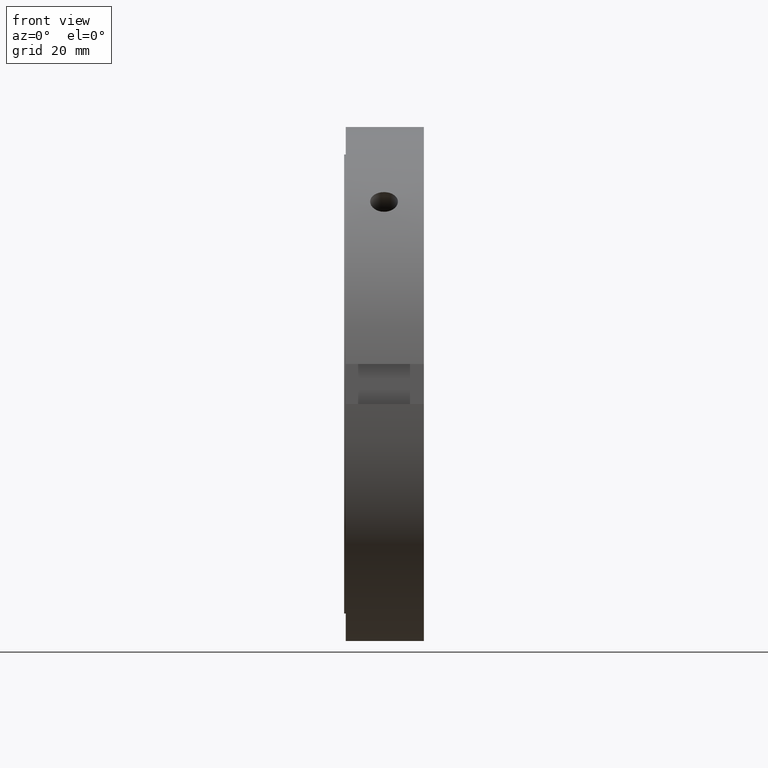
[diagram: clean part render]
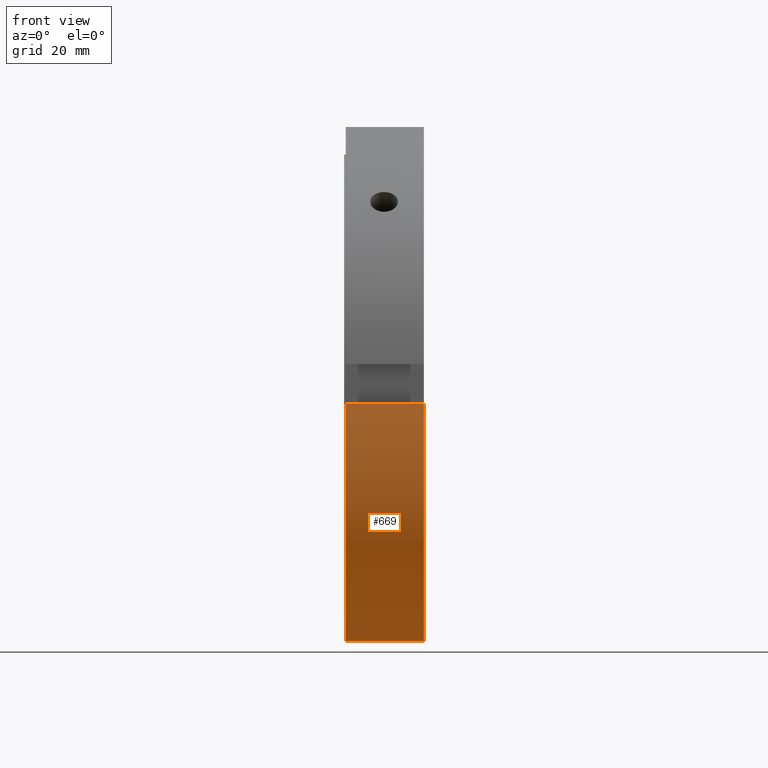
[diagram: same view with one face highlighted and labeled with its STEP entity id]
A machine part, front view. The second image highlights one B-rep face of the part: STEP entity #669.
In plain terms, the highlighted cylindrical surface (partial cylindrical patch) has radius 77.5 mm, axis along (1, 0, 0).
Its self-contained STEP definition (entity closure, byte-faithful):
#251=CARTESIAN_POINT('',(0.499999999999980,-6.000000000000011,-77.267392864001820));
#252=VERTEX_POINT('',#251);
#267=CARTESIAN_POINT('',(23.999999999999986,-6.000000000000011,-77.267392864001820));
#268=VERTEX_POINT('',#267);
#275=CARTESIAN_POINT('',(0.499999999999979,-6.000000000000011,-77.267392864001820));
#276=DIRECTION('',(1.0,0.0,0.0));
#277=VECTOR('',#276,23.500000000000007);
#278=LINE('',#275,#277);
#279=EDGE_CURVE('',#252,#268,#278,.T.);
#391=CARTESIAN_POINT('',(0.499999999999980,-77.267392864001820,-5.999999999999988));
#392=VERTEX_POINT('',#391);
#401=CARTESIAN_POINT('',(23.999999999999986,-77.267392864001820,-5.999999999999988));
#402=VERTEX_POINT('',#401);
#403=CARTESIAN_POINT('',(23.999999999999986,-77.267392864001820,-5.999999999999987));
#404=DIRECTION('',(-1.0,0.0,0.0));
#405=VECTOR('',#404,23.500000000000007);
#406=LINE('',#403,#405);
#407=EDGE_CURVE('',#402,#392,#406,.T.);
#646=CARTESIAN_POINT('',(12.249999999999982,0.0,0.0));
#647=DIRECTION('',(1.0,0.0,0.0));
#648=DIRECTION('',(0.0,1.0,0.0));
#649=AXIS2_PLACEMENT_3D('',#646,#647,#648);
#650=CYLINDRICAL_SURFACE('',#649,77.500000000000000);
#651=ORIENTED_EDGE('',*,*,#279,.T.);
#652=CARTESIAN_POINT('',(23.999999999999986,0.0,0.0));
#653=DIRECTION('',(1.0,0.0,0.0));
#654=DIRECTION('',(0.0,1.0,0.0));
#655=AXIS2_PLACEMENT_3D('',#652,#653,#654);
#656=CIRCLE('',#655,77.500000000000000);
#657=EDGE_CURVE('',#402,#268,#656,.T.);
#658=ORIENTED_EDGE('',*,*,#657,.F.);
#659=ORIENTED_EDGE('',*,*,#407,.T.);
#660=CARTESIAN_POINT('',(0.499999999999980,0.0,0.0));
#661=DIRECTION('',(1.0,0.0,0.0));
#662=DIRECTION('',(0.0,1.0,0.0));
#663=AXIS2_PLACEMENT_3D('',#660,#661,#662);
#664=CIRCLE('',#663,77.500000000000000);
#665=EDGE_CURVE('',#392,#252,#664,.T.);
#666=ORIENTED_EDGE('',*,*,#665,.T.);
#667=EDGE_LOOP('',(#651,#658,#659,#666));
#668=FACE_OUTER_BOUND('',#667,.T.);
#669=ADVANCED_FACE('',(#668),#650,.T.);